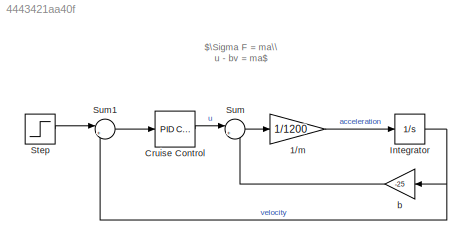
MODEL slx_4443421aa40f
KIND model
CONFIG AbsTol = auto
CONFIG EnableMultiTasking = off
CONFIG FixedStep = auto
CONFIG MaxStep = auto
CONFIG MinStep = auto
CONFIG RelTol = 1e-3
CONFIG SampleTimeConstraint = Unconstrained
CONFIG SolverName = VariableStepAuto
CONFIG StartFcn = learning.simulink.modelCallbacks.startFunction(gcs)
CONFIG StartTime = 0.0
CONFIG StopFcn = learning.simulink.modelCallbacks.stopFunction(gcs);
CONFIG StopTime = 10.0
WORKSPACE source: mxarray member
WORKSPACE courseObject: object (value not decoded)
WORKSPACE t_ans = [0 0.05 0.1 0.15 0.2 0.25 0.3 0.35 0.4 0.45 0.5 0.55 ... (202 elements, 202x1)]
WORKSPACE y_ans1 = [0 0 0 0 0 0 0 0 0 0 0 0 ... (202 elements, 202x1)]
BLOCK [Gain] 1//m
  Gain = 1/1200
BLOCK [Reference] Cruise Control  REF=slpidlib/PID Controller
  SourceBlock = slpidlib/PID Controller
  SourceType = PID 1dof
BLOCK [Integrator] Integrator
BLOCK [Step] Step
  SampleTime = 0
BLOCK [Sum] Sum
  Inputs = |++
BLOCK [Sum] Sum1
  Inputs = |+-
BLOCK [Gain] b
  Gain = -25
ANNOTATION (root): $\Sigma F = ma\\ u - bv = ma$
LINE 1//m:1 -> Integrator:1
LINE Cruise Control:1 -> Sum:1
NET Integrator:1 -> Sum1:2, b:1
LINE Step:1 -> Sum1:1
LINE Sum1:1 -> Cruise Control:1
LINE Sum:1 -> 1//m:1
LINE b:1 -> Sum:2
note: NET lines group one-source signal fan-out (src -> all destinations, sorted); 1:1 wires keep LINE
